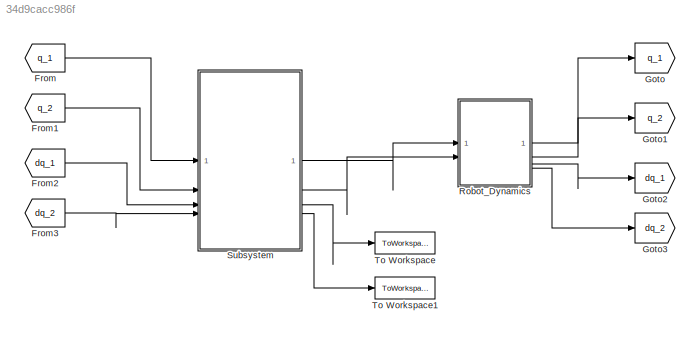
MODEL slx_34d9cacc986f
KIND model
CONFIG AbsTol = auto
CONFIG EnableMultiTasking = off
CONFIG FixedStep = auto
CONFIG MaxStep = auto
CONFIG MinStep = auto
CONFIG RelTol = 1e-3
CONFIG SampleTimeConstraint = Unconstrained
CONFIG SolverName = VariableStepAuto
CONFIG StartTime = 0.0
CONFIG StopTime = 5.0
BLOCK [From] From
  GotoTag = q_1
BLOCK [From] From1
  GotoTag = q_2
BLOCK [From] From2
  GotoTag = dq_1
BLOCK [From] From3
  GotoTag = dq_2
BLOCK [Goto] Goto
  GotoTag = q_1
BLOCK [Goto] Goto1
  GotoTag = q_2
BLOCK [Goto] Goto2
  GotoTag = dq_1
BLOCK [Goto] Goto3
  GotoTag = dq_2
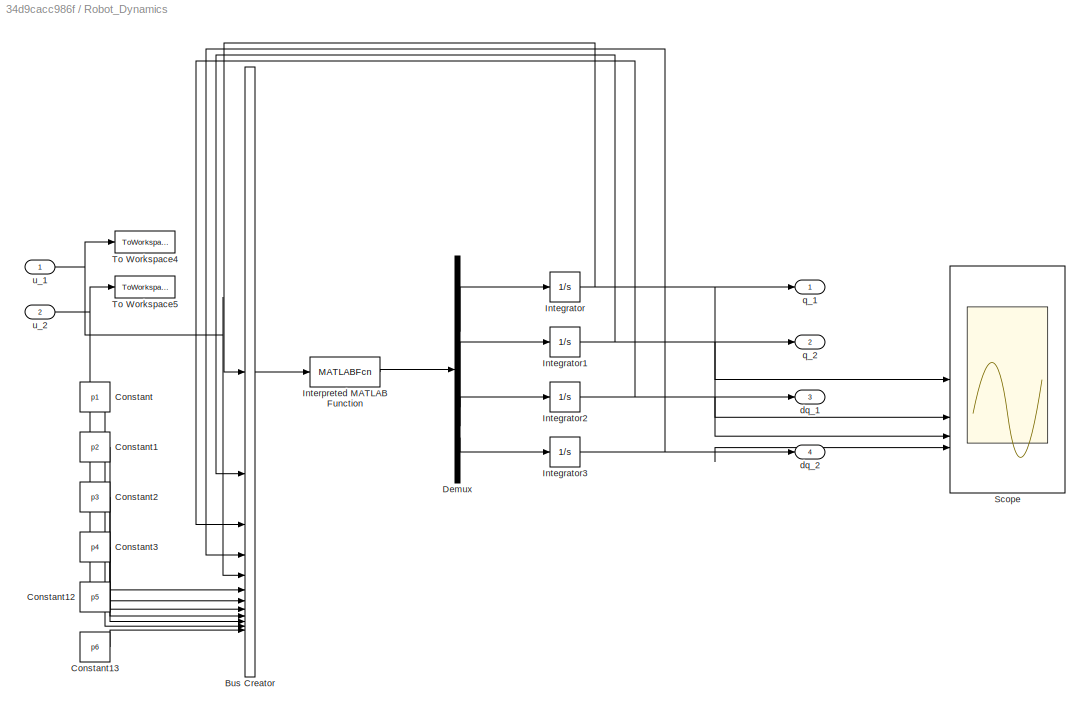
BLOCK [SubSystem] Robot_Dynamics
  NameLocation = left
BLOCK [BusCreator] Robot_Dynamics/Bus Creator
  DisplayOption = bar
  InheritFromInputs = on
  Inputs = 12
BLOCK [Constant] Robot_Dynamics/Constant
  Value = p1
BLOCK [Constant] Robot_Dynamics/Constant1
  Value = p2
BLOCK [Constant] Robot_Dynamics/Constant12
  Value = p5
BLOCK [Constant] Robot_Dynamics/Constant13
  Value = p6
BLOCK [Constant] Robot_Dynamics/Constant2
  Value = p3
BLOCK [Constant] Robot_Dynamics/Constant3
  Value = p4
BLOCK [Demux] Robot_Dynamics/Demux
BLOCK [Integrator] Robot_Dynamics/Integrator
  InitialCondition = q_10
BLOCK [Integrator] Robot_Dynamics/Integrator1
  InitialCondition = q_20
BLOCK [Integrator] Robot_Dynamics/Integrator2
  InitialCondition = dq_10
BLOCK [Integrator] Robot_Dynamics/Integrator3
  InitialCondition = dq_20
BLOCK [MATLABFcn] Robot_Dynamics/Interpreted MATLAB Function
  MATLABFcn = open_loop_dynamics
BLOCK [Scope] Robot_Dynamics/Scope
  Floating = off
  NumInputPorts = 4
  ScopeSpecificationString = Simulink.scopes.TimeScopeBlockCfg('CurrentConfiguration', extmgr.ConfigurationSet(extmgr.Configuration('Core','General UI',true),extmgr.Configuration('Core','Source UI',true),extmgr.Configuration('Sources','WiredSimulink',true,'DataLoggingSaveFormat','StructureWithTime','DataLoggingDecimation','1','DataLoggingDecimateData',true),extmgr.Configuration('Visuals','Time Domain',true,'SerializedDisplays...<+3704ch>
BLOCK [ToWorkspace] Robot_Dynamics/To Workspace4
  MaxDataPoints = inf
  SampleTime = -1
  VariableName = u_1
BLOCK [ToWorkspace] Robot_Dynamics/To Workspace5
  MaxDataPoints = inf
  SampleTime = -1
  VariableName = u_2
BLOCK [Outport] Robot_Dynamics/dq_1
  Port = 3
BLOCK [Outport] Robot_Dynamics/dq_2
  Port = 4
BLOCK [Outport] Robot_Dynamics/q_1
BLOCK [Outport] Robot_Dynamics/q_2
  Port = 2
BLOCK [Inport] Robot_Dynamics/u_1
BLOCK [Inport] Robot_Dynamics/u_2
  Port = 2
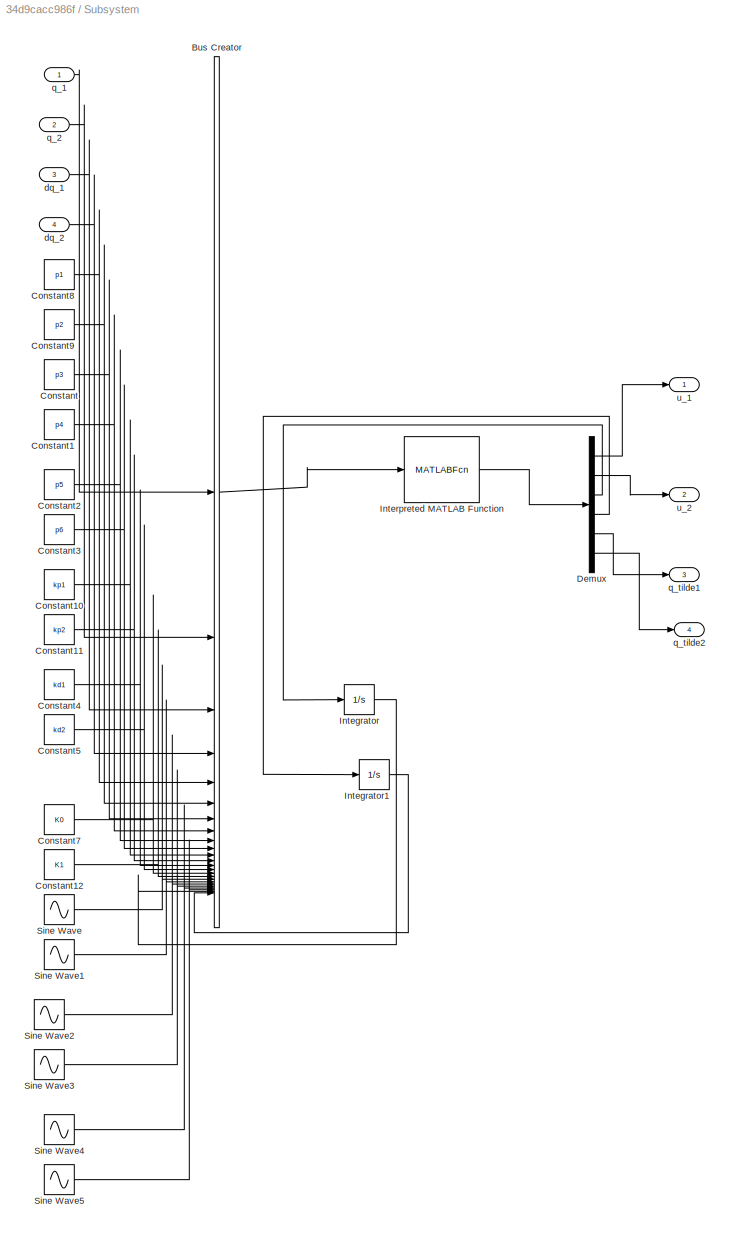
BLOCK [SubSystem] Subsystem
BLOCK [BusCreator] Subsystem/Bus Creator
  DisplayOption = bar
  InheritFromInputs = on
  Inputs = 24
  NameLocation = right
BLOCK [Constant] Subsystem/Constant
  Value = p3
BLOCK [Constant] Subsystem/Constant1
  Value = p4
BLOCK [Constant] Subsystem/Constant10
  Value = kp1
BLOCK [Constant] Subsystem/Constant11
  Value = kp2
BLOCK [Constant] Subsystem/Constant12
  Value = K1
BLOCK [Constant] Subsystem/Constant2
  Value = p5
BLOCK [Constant] Subsystem/Constant3
  Value = p6
BLOCK [Constant] Subsystem/Constant4
  Value = kd1
BLOCK [Constant] Subsystem/Constant5
  Value = kd2
BLOCK [Constant] Subsystem/Constant7
  Value = K0
BLOCK [Constant] Subsystem/Constant8
  Value = p1
BLOCK [Constant] Subsystem/Constant9
  Value = p2
BLOCK [Demux] Subsystem/Demux
  Outputs = 6
BLOCK [Integrator] Subsystem/Integrator
  InitialCondition = K0 * (q_10 - q_d1)
BLOCK [Integrator] Subsystem/Integrator1
  InitialCondition = K0 * (q_20 - q_d2)
BLOCK [MATLABFcn] Subsystem/Interpreted MATLAB Function
  MATLABFcn = GSOPD
BLOCK [Sin] Subsystem/Sine Wave
  Frequency = pi
  SampleTime = 0
BLOCK [Sin] Subsystem/Sine Wave1
  Frequency = pi
  SampleTime = 0
BLOCK [Sin] Subsystem/Sine Wave2
  Amplitude = pi
  Frequency = pi
  Phase = pi/2
  SampleTime = 0
BLOCK [Sin] Subsystem/Sine Wave3
  Amplitude = pi
  Frequency = pi
  Phase = pi/2
  SampleTime = 0
BLOCK [Sin] Subsystem/Sine Wave4
  Amplitude = -1*pi*pi
  Frequency = pi
  SampleTime = 0
BLOCK [Sin] Subsystem/Sine Wave5
  Amplitude = -1*pi*pi
  Frequency = pi
  SampleTime = 0
BLOCK [Inport] Subsystem/dq_1
  Port = 3
BLOCK [Inport] Subsystem/dq_2
  Port = 4
BLOCK [Inport] Subsystem/q_1
BLOCK [Inport] Subsystem/q_2
  Port = 2
BLOCK [Outport] Subsystem/q_tilde1
  Port = 3
BLOCK [Outport] Subsystem/q_tilde2
  Port = 4
BLOCK [Outport] Subsystem/u_1
BLOCK [Outport] Subsystem/u_2
  Port = 2
BLOCK [ToWorkspace] To Workspace
  MaxDataPoints = inf
  SampleTime = -1
  VariableName = q_tilde1
BLOCK [ToWorkspace] To Workspace1
  MaxDataPoints = inf
  SampleTime = -1
  VariableName = q_tilde2
LINE From1:1 -> Subsystem:2
LINE From2:1 -> Subsystem:3
LINE From3:1 -> Subsystem:4
LINE From:1 -> Subsystem:1
LINE Robot_Dynamics/Bus Creator:1 -> Robot_Dynamics/Interpreted MATLAB Function:1
LINE Robot_Dynamics/Constant12:1 -> Robot_Dynamics/Bus Creator:11
LINE Robot_Dynamics/Constant13:1 -> Robot_Dynamics/Bus Creator:12
LINE Robot_Dynamics/Constant1:1 -> Robot_Dynamics/Bus Creator:8
LINE Robot_Dynamics/Constant2:1 -> Robot_Dynamics/Bus Creator:9
LINE Robot_Dynamics/Constant3:1 -> Robot_Dynamics/Bus Creator:10
LINE Robot_Dynamics/Constant:1 -> Robot_Dynamics/Bus Creator:7
LINE Robot_Dynamics/Demux:1 -> Robot_Dynamics/Integrator:1
LINE Robot_Dynamics/Demux:2 -> Robot_Dynamics/Integrator1:1
LINE Robot_Dynamics/Demux:3 -> Robot_Dynamics/Integrator2:1
LINE Robot_Dynamics/Demux:4 -> Robot_Dynamics/Integrator3:1
NET Robot_Dynamics/Integrator1:1 -> Robot_Dynamics/Bus Creator:2, Robot_Dynamics/Scope:2, Robot_Dynamics/q_2:1
NET Robot_Dynamics/Integrator2:1 -> Robot_Dynamics/Bus Creator:3, Robot_Dynamics/Scope:3, Robot_Dynamics/dq_1:1
NET Robot_Dynamics/Integrator3:1 -> Robot_Dynamics/Bus Creator:4, Robot_Dynamics/Scope:4, Robot_Dynamics/dq_2:1
NET Robot_Dynamics/Integrator:1 -> Robot_Dynamics/Bus Creator:1, Robot_Dynamics/Scope:1, Robot_Dynamics/q_1:1
LINE Robot_Dynamics/Interpreted MATLAB Function:1 -> Robot_Dynamics/Demux:1
NET Robot_Dynamics/u_1:1 -> Robot_Dynamics/Bus Creator:5, Robot_Dynamics/To Workspace4:1
NET Robot_Dynamics/u_2:1 -> Robot_Dynamics/Bus Creator:6, Robot_Dynamics/To Workspace5:1
LINE Robot_Dynamics:1 -> Goto:1
LINE Robot_Dynamics:2 -> Goto1:1
LINE Robot_Dynamics:3 -> Goto2:1
LINE Robot_Dynamics:4 -> Goto3:1
LINE Subsystem/Bus Creator:1 -> Subsystem/Interpreted MATLAB Function:1
LINE Subsystem/Constant10:1 -> Subsystem/Bus Creator:11
LINE Subsystem/Constant11:1 -> Subsystem/Bus Creator:12
LINE Subsystem/Constant12:1 -> Subsystem/Bus Creator:16
LINE Subsystem/Constant1:1 -> Subsystem/Bus Creator:8
LINE Subsystem/Constant2:1 -> Subsystem/Bus Creator:9
LINE Subsystem/Constant3:1 -> Subsystem/Bus Creator:10
LINE Subsystem/Constant4:1 -> Subsystem/Bus Creator:13
LINE Subsystem/Constant5:1 -> Subsystem/Bus Creator:14
LINE Subsystem/Constant7:1 -> Subsystem/Bus Creator:15
LINE Subsystem/Constant8:1 -> Subsystem/Bus Creator:5
LINE Subsystem/Constant9:1 -> Subsystem/Bus Creator:6
LINE Subsystem/Constant:1 -> Subsystem/Bus Creator:7
LINE Subsystem/Demux:1 -> Subsystem/u_1:1
LINE Subsystem/Demux:2 -> Subsystem/u_2:1
LINE Subsystem/Demux:3 -> Subsystem/Integrator:1
LINE Subsystem/Demux:4 -> Subsystem/Integrator1:1
LINE Subsystem/Demux:5 -> Subsystem/q_tilde1:1
LINE Subsystem/Demux:6 -> Subsystem/q_tilde2:1
LINE Subsystem/Integrator1:1 -> Subsystem/Bus Creator:24
LINE Subsystem/Integrator:1 -> Subsystem/Bus Creator:23
LINE Subsystem/Interpreted MATLAB Function:1 -> Subsystem/Demux:1
LINE Subsystem/Sine Wave1:1 -> Subsystem/Bus Creator:18
LINE Subsystem/Sine Wave2:1 -> Subsystem/Bus Creator:19
LINE Subsystem/Sine Wave3:1 -> Subsystem/Bus Creator:20
LINE Subsystem/Sine Wave4:1 -> Subsystem/Bus Creator:21
LINE Subsystem/Sine Wave5:1 -> Subsystem/Bus Creator:22
LINE Subsystem/Sine Wave:1 -> Subsystem/Bus Creator:17
LINE Subsystem/dq_1:1 -> Subsystem/Bus Creator:3
LINE Subsystem/dq_2:1 -> Subsystem/Bus Creator:4
LINE Subsystem/q_1:1 -> Subsystem/Bus Creator:1
LINE Subsystem/q_2:1 -> Subsystem/Bus Creator:2
LINE Subsystem:1 -> Robot_Dynamics:1
LINE Subsystem:2 -> Robot_Dynamics:2
LINE Subsystem:3 -> To Workspace:1
LINE Subsystem:4 -> To Workspace1:1
note: NET lines group one-source signal fan-out (src -> all destinations, sorted); 1:1 wires keep LINE
